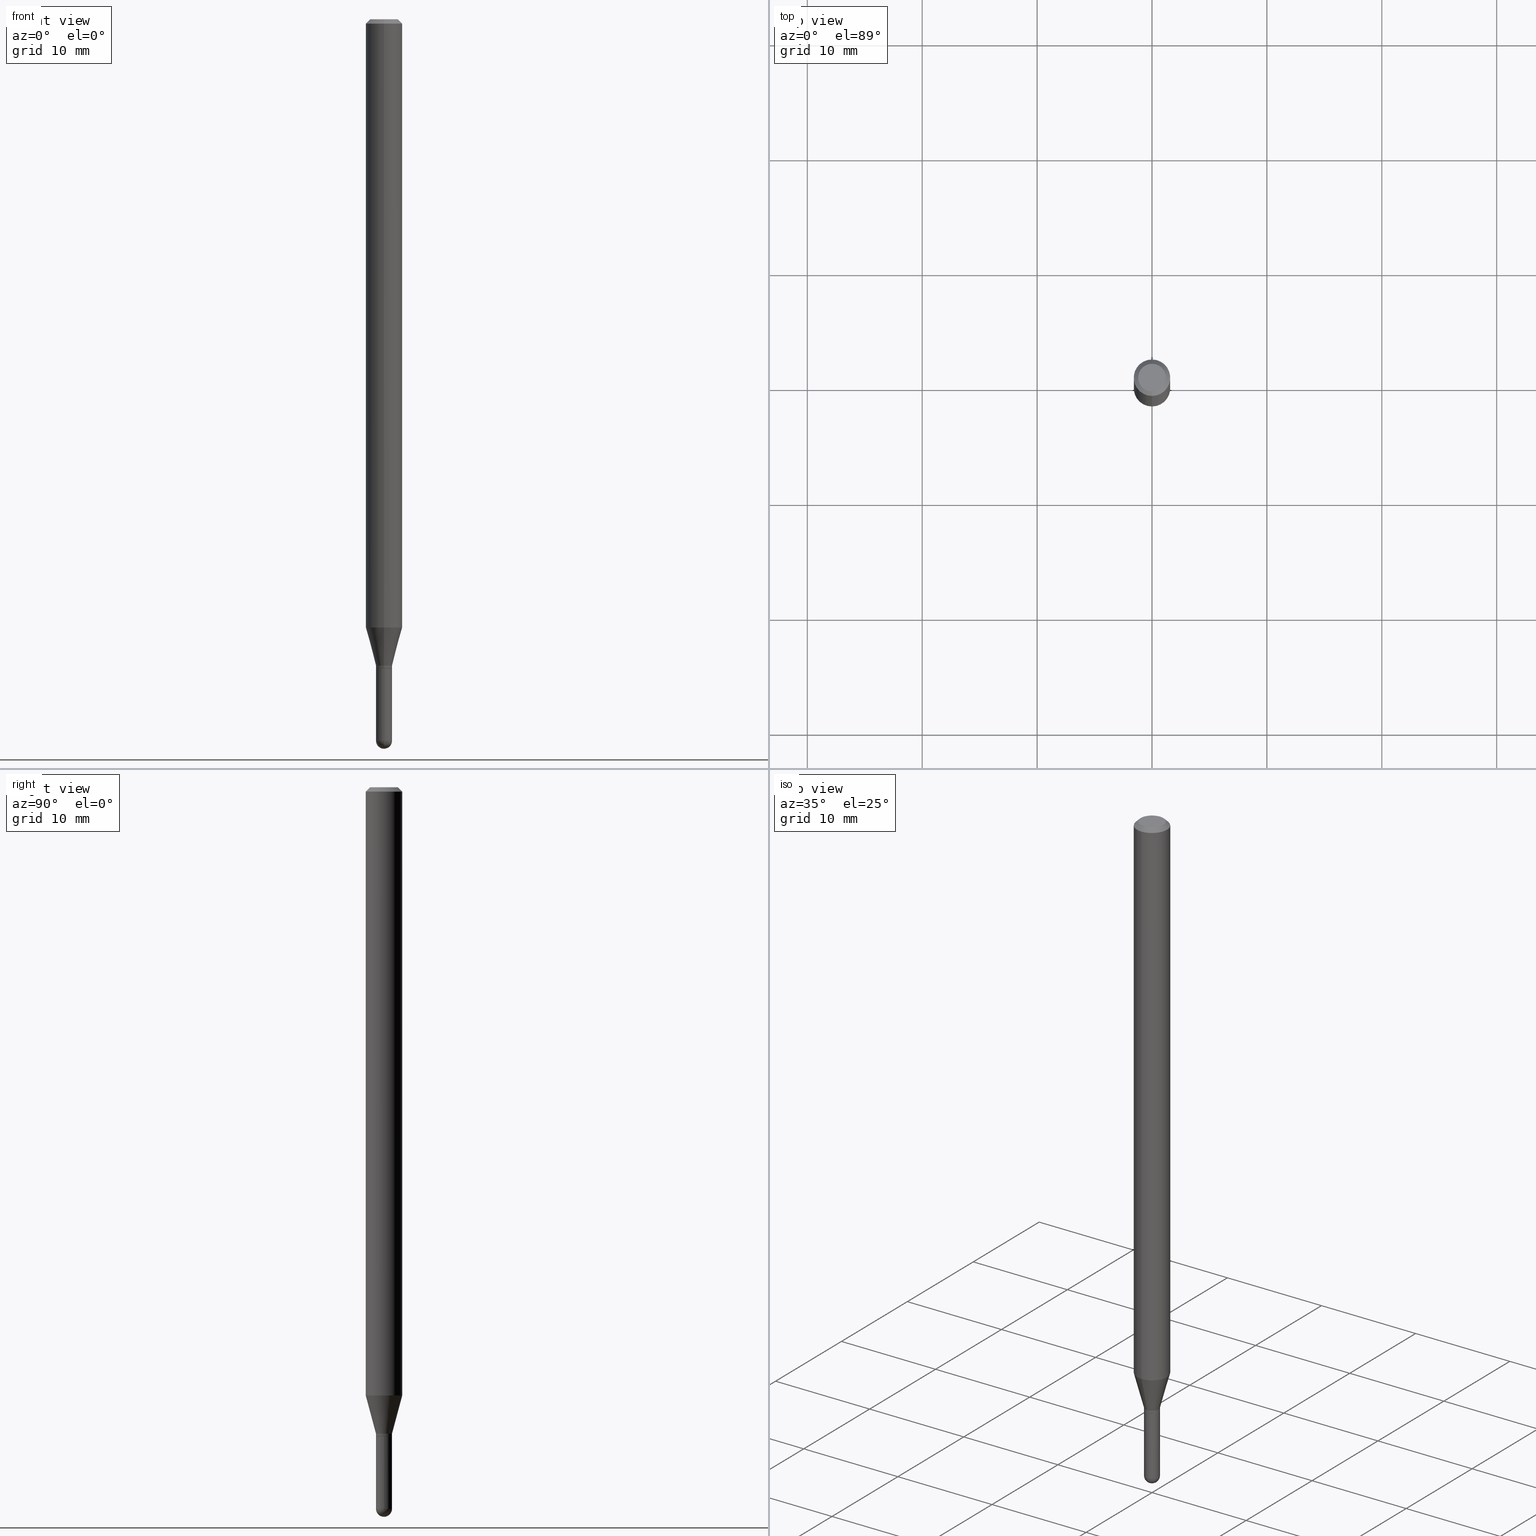
[diagram: canonical four-view strip — front | top / right | iso, engineering-drawing reading convention]
A machine part, canonical four-view strip (front | top / right | iso — engineering-drawing reading convention). The complete STEP part file that produces these views, byte-faithful:
ISO-10303-21;
HEADER;
FILE_DESCRIPTION (( 'STEP AP203' ),
    '1' );
FILE_NAME ('00963.STEP',
    '2024-03-07T19:16:21',
    ( '' ),
    ( '' ),
    'SwSTEP 2.0',
    'SolidWorks 2023',
    '' );
FILE_SCHEMA (( 'CONFIG_CONTROL_DESIGN' ));
ENDSEC;

DATA;
#1 = CARTESIAN_POINT ( 'NONE',  ( 5.416780979827812777E-29, -7.733534395540570938E-15, -2.215000000000000302 ) ) ;
#2 = FACE_OUTER_BOUND ( 'NONE', #28, .T. ) ;
#3 = CARTESIAN_POINT ( 'NONE',  ( 3.668248970538024537E-31, -5.237156475535378109E-17, -0.01500000000000000812 ) ) ;
#4 = LINE ( 'NONE', #434, #249 ) ;
#5 = DATE_AND_TIME ( #131, #308 ) ;
#6 = ORIENTED_EDGE ( 'NONE', *, *, #512, .T. ) ;
#7 = DIRECTION ( 'NONE',  ( -2.445499313692014711E-29, 3.491437650356916389E-15, 1.000000000000000000 ) ) ;
#8 = EDGE_CURVE ( 'NONE', #373, #41, #344, .T. ) ;
#9 = CIRCLE ( 'NONE', #56, 0.06250000000000000000 ) ;
#10 = DIRECTION ( 'NONE',  ( -2.445499313692014711E-29, 3.491437650356916389E-15, 1.000000000000000000 ) ) ;
#11 = APPROVAL_DATE_TIME ( #125, #42 ) ;
#12 = CONICAL_SURFACE ( 'NONE', #111, 0.06250000000000000000, 0.7853981633974483900 ) ;
#13 = CARTESIAN_POINT ( 'NONE',  ( 4.440892098501138921E-16, 0.06249999999999995143, -0.01500000000000022669 ) ) ;
#14 = DIRECTION ( 'NONE',  ( -6.982962677686265133E-15, -1.000000000000000000, 0.000000000000000000 ) ) ;
#15 = APPROVAL_DATE_TIME ( #164, #486 ) ;
#16 = ORIENTED_EDGE ( 'NONE', *, *, #141, .T. ) ;
#17 = ADVANCED_FACE ( 'NONE', ( #352 ), #428, .T. ) ;
#18 = DIRECTION ( 'NONE',  ( -6.982962677686265922E-15, -1.000000000000000000, 0.000000000000000000 ) ) ;
#19 = VERTEX_POINT ( 'NONE', #500 ) ;
#20 = PERSON_AND_ORGANIZATION ( #109, #425 ) ;
#21 = DIRECTION ( 'NONE',  ( -6.982962677686266711E-15, -1.000000000000000000, 3.491437650356916389E-15 ) ) ;
#22 = AXIS2_PLACEMENT_3D ( 'NONE', #159, #404, #21 ) ;
#23 = CONICAL_SURFACE ( 'NONE', #197, 0.02699999999999999969, 0.7853981633974739252 ) ;
#24 = VERTEX_POINT ( 'NONE', #426 ) ;
#25 = PLANE ( 'NONE',  #372 ) ;
#26 = ORIENTED_EDGE ( 'NONE', *, *, #70, .F. ) ;
#27 = ORIENTED_EDGE ( 'NONE', *, *, #470, .T. ) ;
#28 = EDGE_LOOP ( 'NONE', ( #108, #140, #215, #303 ) ) ;
#29 = ORIENTED_EDGE ( 'NONE', *, *, #185, .F. ) ;
#30 = AXIS2_PLACEMENT_3D ( 'NONE', #358, #7, #239 ) ;
#31 = ORIENTED_EDGE ( 'NONE', *, *, #451, .T. ) ;
#32 = ORIENTED_EDGE ( 'NONE', *, *, #35, .T. ) ;
#33 = ORIENTED_EDGE ( 'NONE', *, *, #293, .T. ) ;
#34 = EDGE_CURVE ( 'NONE', #144, #251, #220, .T. ) ;
#35 = EDGE_CURVE ( 'NONE', #376, #73, #227, .T. ) ;
#36 = VERTEX_POINT ( 'NONE', #261 ) ;
#37 = CARTESIAN_POINT ( 'NONE',  ( -0.02750000000000000014, 1.953992523340275521E-16, -1.352707149820099181E-30 ) ) ;
#38 = ORIENTED_EDGE ( 'NONE', *, *, #70, .T. ) ;
#39 = CIRCLE ( 'NONE', #46, 0.02699999999999999969 ) ;
#40 = APPROVAL_PERSON_ORGANIZATION ( #327, #486, #367 ) ;
#41 = VERTEX_POINT ( 'NONE', #145 ) ;
#42 = APPROVAL ( #370, 'UNSPECIFIED' ) ;
#43 = CARTESIAN_POINT ( 'NONE',  ( 1.953992523340289573E-16, 0.02750000000000020137, -9.601453538481590525E-17 ) ) ;
#44 = DIRECTION ( 'NONE',  ( 1.000000000000000000, -6.982962677686279332E-15, 0.000000000000000000 ) ) ;
#45 = DIRECTION ( 'NONE',  ( -6.982962677686265133E-15, -1.000000000000000000, 0.000000000000000000 ) ) ;
#46 = AXIS2_PLACEMENT_3D ( 'NONE', #129, #320, #429 ) ;
#47 = AXIS2_PLACEMENT_3D ( 'NONE', #94, #430, #14 ) ;
#48 = ORIENTED_EDGE ( 'NONE', *, *, #405, .T. ) ;
#49 = CARTESIAN_POINT ( 'NONE',  ( -1.920314736363195647E-16, -0.02750000000000793476, -2.215000000000000302 ) ) ;
#50 = ADVANCED_FACE ( 'NONE', ( #148 ), #147, .T. ) ;
#51 = DIRECTION ( 'NONE',  ( 6.982962677686265922E-15, 1.000000000000000000, -3.483106191921935554E-15 ) ) ;
#52 = DIRECTION ( 'NONE',  ( 6.982962677686265922E-15, 1.000000000000000000, -3.483106191921935554E-15 ) ) ;
#53 = CARTESIAN_POINT ( 'NONE',  ( 5.416780979827812777E-29, -7.733534395540570938E-15, -2.215000000000000302 ) ) ;
#54 = ADVANCED_FACE ( 'NONE', ( #114 ), #423, .T. ) ;
#55 = FACE_OUTER_BOUND ( 'NONE', #375, .T. ) ;
#56 = AXIS2_PLACEMENT_3D ( 'NONE', #418, #183, #82 ) ;
#57 = FACE_OUTER_BOUND ( 'NONE', #182, .T. ) ;
#58 = PERSON_AND_ORGANIZATION_ROLE ( 'classification_officer' ) ;
#59 = APPROVAL_PERSON_ORGANIZATION ( #100, #42, #167 ) ;
#60 = EDGE_CURVE ( 'NONE', #252, #41, #9, .T. ) ;
#61 = FACE_OUTER_BOUND ( 'NONE', #449, .T. ) ;
#62 = PERSON_AND_ORGANIZATION ( #109, #425 ) ;
#63 = DIRECTION ( 'NONE',  ( 5.024295867788190974E-15, 0.7071067811865681119, 0.7071067811865270336 ) ) ;
#64 = CARTESIAN_POINT ( 'NONE',  ( 5.416780979827812777E-29, -7.733534395540570938E-15, -2.215000000000000302 ) ) ;
#65 = EDGE_CURVE ( 'NONE', #19, #252, #225, .T. ) ;
#66 = ORIENTED_EDGE ( 'NONE', *, *, #466, .F. ) ;
#67 = ORIENTED_EDGE ( 'NONE', *, *, #413, .F. ) ;
#68 = FACE_OUTER_BOUND ( 'NONE', #81, .T. ) ;
#69 = ORIENTED_EDGE ( 'NONE', *, *, #451, .F. ) ;
#70 = EDGE_CURVE ( 'NONE', #462, #276, #290, .T. ) ;
#71 = AXIS2_PLACEMENT_3D ( 'NONE', #503, #266, #45 ) ;
#72 =( GEOMETRIC_REPRESENTATION_CONTEXT ( 3 ) GLOBAL_UNCERTAINTY_ASSIGNED_CONTEXT ( ( #226 ) ) GLOBAL_UNIT_ASSIGNED_CONTEXT ( ( #331, #188, #135 ) ) REPRESENTATION_CONTEXT ( 'NONE', 'WORKASPACE' ) );
#73 = VERTEX_POINT ( 'NONE', #75 ) ;
#74 = ADVANCED_FACE ( 'NONE', ( #385 ), #296, .T. ) ;
#75 = CARTESIAN_POINT ( 'NONE',  ( 3.197442310920983692E-16, 0.02749999999999246797, -2.215000000000000302 ) ) ;
#76 = DESIGN_CONTEXT ( 'detailed design', #417, 'design' ) ;
#77 = EDGE_LOOP ( 'NONE', ( #452, #377, #379, #305 ) ) ;
#78 = DIRECTION ( 'NONE',  ( -2.445468806185136597E-29, 3.491481338843145583E-15, 1.000000000000000000 ) ) ;
#79 = ORIENTED_EDGE ( 'NONE', *, *, #186, .T. ) ;
#80 = AXIS2_PLACEMENT_3D ( 'NONE', #196, #435, #95 ) ;
#81 = EDGE_LOOP ( 'NONE', ( #285, #391 ) ) ;
#82 = DIRECTION ( 'NONE',  ( -6.982962677686265922E-15, -1.000000000000000000, 3.483106191921935554E-15 ) ) ;
#83 = DIRECTION ( 'NONE',  ( -6.982962677686265922E-15, -1.000000000000000000, 3.491437650356916389E-15 ) ) ;
#84 = CARTESIAN_POINT ( 'NONE',  ( 5.440013223307887691E-29, -7.766703053218961132E-15, -2.224500000000000366 ) ) ;
#85 = AXIS2_PLACEMENT_3D ( 'NONE', #247, #250, #374 ) ;
#86 = CIRCLE ( 'NONE', #355, 0.06250000000000000000 ) ;
#87 = DIRECTION ( 'NONE',  ( 1.000000000000000000, -6.982962677686279332E-15, 0.000000000000000000 ) ) ;
#88 = COORDINATED_UNIVERSAL_TIME_OFFSET ( 5, 0, .BEHIND. ) ;
#89 = DIRECTION ( 'NONE',  ( 6.982962677686265922E-15, 1.000000000000000000, -3.491437650356915995E-15 ) ) ;
#90 = CARTESIAN_POINT ( 'NONE',  ( 1.920314736364267512E-16, 0.02749999999999223205, -2.225000000000000089 ) ) ;
#91 = APPLICATION_PROTOCOL_DEFINITION ( 'international standard', 'config_control_design', 1994, #417 ) ;
#92 = DIRECTION ( 'NONE',  ( -2.445499313692014711E-29, 3.491437650356916389E-15, 1.000000000000000000 ) ) ;
#93 = EDGE_CURVE ( 'NONE', #314, #340, #454, .T. ) ;
#94 = CARTESIAN_POINT ( 'NONE',  ( 5.441235972964734211E-29, -7.768448772044140228E-15, -2.225000000000000533 ) ) ;
#95 = DIRECTION ( 'NONE',  ( 1.000000000000000000, -6.982962677686279332E-15, 0.000000000000000000 ) ) ;
#96 = CARTESIAN_POINT ( 'NONE',  ( 5.441235972964734211E-29, -7.768448772044140228E-15, -2.225000000000000533 ) ) ;
#97 = PERSON_AND_ORGANIZATION ( #109, #425 ) ;
#98 = FACE_OUTER_BOUND ( 'NONE', #383, .T. ) ;
#99 = EDGE_CURVE ( 'NONE', #144, #172, #420, .T. ) ;
#100 = PERSON_AND_ORGANIZATION ( #109, #425 ) ;
#101 = ORIENTED_EDGE ( 'NONE', *, *, #466, .T. ) ;
#102 = DIRECTION ( 'NONE',  ( 1.000000000000000000, 0.000000000000000000, 0.000000000000000000 ) ) ;
#103 = SPHERICAL_SURFACE ( 'NONE', #85, 0.02750000000000009381 ) ;
#104 = AXIS2_PLACEMENT_3D ( 'NONE', #390, #78, #44 ) ;
#105 = LOCAL_TIME ( 14, 16, 20.00000000000000000, #203 ) ;
#106 = ADVANCED_FACE ( 'NONE', ( #179 ), #345, .T. ) ;
#107 = EDGE_CURVE ( 'NONE', #314, #455, #487, .T. ) ;
#108 = ORIENTED_EDGE ( 'NONE', *, *, #313, .F. ) ;
#109 = PERSON ( 'UNSPECIFIED', 'UNSPECIFIED', 'UNSPECIFIED', ('UNSPECIFIED'), ('UNSPECIFIED'), ('UNSPECIFIED') ) ;
#110 = VECTOR ( 'NONE', #121, 39.37007874015748854 ) ;
#111 = AXIS2_PLACEMENT_3D ( 'NONE', #127, #277, #51 ) ;
#112 = DIRECTION ( 'NONE',  ( 1.000000000000000000, -6.982962677686279332E-15, 0.000000000000000000 ) ) ;
#113 = CARTESIAN_POINT ( 'NONE',  ( 4.440892098500625669E-16, 0.06250000000000000000, -2.182148531473072497E-16 ) ) ;
#114 = FACE_OUTER_BOUND ( 'NONE', #498, .T. ) ;
#115 = CONICAL_SURFACE ( 'NONE', #149, 0.06250000000000000000, 0.7853981633974483900 ) ;
#116 = ORIENTED_EDGE ( 'NONE', *, *, #506, .T. ) ;
#117 = DIRECTION ( 'NONE',  ( -6.982962677686265922E-15, -1.000000000000000000, 0.000000000000000000 ) ) ;
#118 = DIRECTION ( 'NONE',  ( 2.445499313692014711E-29, -3.491437650356916389E-15, -1.000000000000000000 ) ) ;
#119 = CARTESIAN_POINT ( 'NONE',  ( 5.097345510727747857E-29, -7.277476600949894136E-15, -2.084378221735090797 ) ) ;
#120 = CIRCLE ( 'NONE', #158, 0.02750000000000019790 ) ;
#121 = DIRECTION ( 'NONE',  ( -1.807323732225331717E-15, -0.2588190451025184080, 0.9659258262890689783 ) ) ;
#122 = CARTESIAN_POINT ( 'NONE',  ( 5.441168093761929600E-29, -7.768545978925998537E-15, -2.225000000000000089 ) ) ;
#123 = FACE_OUTER_BOUND ( 'NONE', #216, .T. ) ;
#124 = DIRECTION ( 'NONE',  ( -2.445499313692014431E-29, 3.491437650356915995E-15, 1.000000000000000000 ) ) ;
#125 = DATE_AND_TIME ( #329, #160 ) ;
#126 = DIRECTION ( 'NONE',  ( -2.445499313692014711E-29, 3.491437650356916389E-15, 1.000000000000000000 ) ) ;
#127 = CARTESIAN_POINT ( 'NONE',  ( 3.668248970538024537E-31, -5.237156475535378109E-17, -0.01500000000000000812 ) ) ;
#128 = DATE_TIME_ROLE ( 'creation_date' ) ;
#129 = CARTESIAN_POINT ( 'NONE',  ( 5.441235972964734211E-29, -7.768448772044140228E-15, -2.225000000000000533 ) ) ;
#130 = DIRECTION ( 'NONE',  ( -2.445499313692014711E-29, 3.491437650356916389E-15, 1.000000000000000000 ) ) ;
#131 = CALENDAR_DATE ( 2024, 7, 3 ) ;
#132 = VECTOR ( 'NONE', #268, 39.37007874015748143 ) ;
#133 = PERSON_AND_ORGANIZATION_ROLE ( 'design_owner' ) ;
#134 = CARTESIAN_POINT ( 'NONE',  ( 0.000000000000000000, 0.000000000000000000, 0.000000000000000000 ) ) ;
#135 =( NAMED_UNIT ( * ) SI_UNIT ( $, .STERADIAN. ) SOLID_ANGLE_UNIT ( ) );
#136 = CARTESIAN_POINT ( 'NONE',  ( -1.920314736363199591E-16, -0.02750000000000805966, -2.224500000000000366 ) ) ;
#137 = VECTOR ( 'NONE', #124, 39.37007874015748143 ) ;
#138 = ORIENTED_EDGE ( 'NONE', *, *, #446, .T. ) ;
#139 = VERTEX_POINT ( 'NONE', #191 ) ;
#140 = ORIENTED_EDGE ( 'NONE', *, *, #8, .T. ) ;
#141 = EDGE_CURVE ( 'NONE', #376, #340, #120, .T. ) ;
#142 = DIRECTION ( 'NONE',  ( -2.445499313692014711E-29, 3.491437650356916389E-15, 1.000000000000000000 ) ) ;
#143 = EDGE_CURVE ( 'NONE', #455, #376, #326, .T. ) ;
#144 = VERTEX_POINT ( 'NONE', #271 ) ;
#145 = CARTESIAN_POINT ( 'NONE',  ( -4.364351673553912750E-16, -0.06250000000000005551, -0.01499999999999979128 ) ) ;
#146 = EDGE_LOOP ( 'NONE', ( #422, #493, #26, #178 ) ) ;
#147 = SPHERICAL_SURFACE ( 'NONE', #381, 0.02750000000000009381 ) ;
#148 = FACE_OUTER_BOUND ( 'NONE', #77, .T. ) ;
#149 = AXIS2_PLACEMENT_3D ( 'NONE', #3, #118, #52 ) ;
#150 = CC_DESIGN_SECURITY_CLASSIFICATION ( #336, ( #347 ) ) ;
#151 = DIRECTION ( 'NONE',  ( -2.445468806185136597E-29, 3.491481338843145583E-15, 1.000000000000000000 ) ) ;
#152 = CARTESIAN_POINT ( 'NONE',  ( -1.953992523339674261E-16, -0.02750000000000868070, -2.472499999999999254 ) ) ;
#153 = CARTESIAN_POINT ( 'NONE',  ( 1.953992523340826738E-16, 0.02749999999999233613, -2.224500000000000366 ) ) ;
#154 = ORIENTED_EDGE ( 'NONE', *, *, #60, .F. ) ;
#155 = CARTESIAN_POINT ( 'NONE',  ( 3.316907271900976096E-16, 0.04749999999999999362, -1.702744857894170373E-16 ) ) ;
#156 = CARTESIAN_POINT ( 'NONE',  ( 1.936228954946823724E-16, 0.02699999999999223160, -2.225000000000000533 ) ) ;
#157 = DATE_TIME_ROLE ( 'classification_date' ) ;
#158 = AXIS2_PLACEMENT_3D ( 'NONE', #356, #142, #476 ) ;
#159 = CARTESIAN_POINT ( 'NONE',  ( 2.167298038866162104E-46, -3.094249885933522826E-32, -8.862394794926981890E-18 ) ) ;
#160 = LOCAL_TIME ( 14, 16, 20.00000000000000000, #478 ) ;
#161 = DIRECTION ( 'NONE',  ( -2.445468806185136597E-29, 3.491481338843145583E-15, 1.000000000000000000 ) ) ;
#162 = DIRECTION ( 'NONE',  ( -2.445499313692014711E-29, 3.491437650356916389E-15, 1.000000000000000000 ) ) ;
#163 = DIRECTION ( 'NONE',  ( -2.445468806185136597E-29, 3.491481338843145583E-15, 1.000000000000000000 ) ) ;
#164 = DATE_AND_TIME ( #286, #229 ) ;
#165 = CARTESIAN_POINT ( 'NONE',  ( 0.000000000000000000, 0.000000000000000000, 0.000000000000000000 ) ) ;
#166 =( LENGTH_UNIT ( ) NAMED_UNIT ( * ) SI_UNIT ( $, .METRE. ) );
#167 = APPROVAL_ROLE ( '' ) ;
#168 = CARTESIAN_POINT ( 'NONE',  ( 6.044069915997506284E-29, -8.636055388987333140E-15, -2.472500000000000142 ) ) ;
#169 = CLOSED_SHELL ( 'NONE', ( #54, #50, #380, #337, #74 ) ) ;
#170 = CIRCLE ( 'NONE', #403, 0.02750000000000020137 ) ;
#171 = CC_DESIGN_PERSON_AND_ORGANIZATION_ASSIGNMENT ( #396, #58, ( #336 ) ) ;
#172 = VERTEX_POINT ( 'NONE', #468 ) ;
#173 = ADVANCED_FACE ( 'NONE', ( #61 ), #115, .T. ) ;
#174 = ORIENTED_EDGE ( 'NONE', *, *, #495, .T. ) ;
#175 = CONICAL_SURFACE ( 'NONE', #453, 0.02750000000000020137, 0.2617993877991505181 ) ;
#176 = ORIENTED_EDGE ( 'NONE', *, *, #143, .F. ) ;
#177 = ORIENTED_EDGE ( 'NONE', *, *, #34, .T. ) ;
#178 = ORIENTED_EDGE ( 'NONE', *, *, #405, .F. ) ;
#179 = FACE_OUTER_BOUND ( 'NONE', #208, .T. ) ;
#180 = AXIS2_PLACEMENT_3D ( 'NONE', #165, #92, #243 ) ;
#181 = APPLICATION_CONTEXT ( 'configuration controlled 3d designs of mechanical parts and assemblies' ) ;
#182 = EDGE_LOOP ( 'NONE', ( #79, #101 ) ) ;
#183 = DIRECTION ( 'NONE',  ( -2.445499313692014711E-29, 3.491437650356916389E-15, 1.000000000000000000 ) ) ;
#184 = DIRECTION ( 'NONE',  ( -1.000000000000000000, 6.982962677686265922E-15, -4.883557194083112901E-29 ) ) ;
#185 = EDGE_CURVE ( 'NONE', #340, #376, #441, .T. ) ;
#186 = EDGE_CURVE ( 'NONE', #139, #172, #189, .T. ) ;
#187 = CARTESIAN_POINT ( 'NONE',  ( 0.000000000000000000, 0.000000000000000000, 0.000000000000000000 ) ) ;
#188 =( NAMED_UNIT ( * ) PLANE_ANGLE_UNIT ( ) SI_UNIT ( $, .RADIAN. ) );
#189 = CIRCLE ( 'NONE', #80, 0.02750000000000000014 ) ;
#190 = AXIS2_PLACEMENT_3D ( 'NONE', #134, #287, #102 ) ;
#191 = CARTESIAN_POINT ( 'NONE',  ( 0.02750000000000000014, -7.960577452562371818E-15, -2.225000000000000089 ) ) ;
#192 = CARTESIAN_POINT ( 'NONE',  ( -1.920314736363195647E-16, -0.02750000000000793476, -2.215000000000000302 ) ) ;
#193 = ORIENTED_EDGE ( 'NONE', *, *, #107, .T. ) ;
#194 = DIRECTION ( 'NONE',  ( 1.000000000000000000, -6.982962677686265922E-15, 4.883557194083112340E-29 ) ) ;
#195 = APPROVAL_STATUS ( 'not_yet_approved' ) ;
#196 = CARTESIAN_POINT ( 'NONE',  ( 5.441168093761929600E-29, -7.768545978925998537E-15, -2.225000000000000089 ) ) ;
#197 = AXIS2_PLACEMENT_3D ( 'NONE', #96, #10, #321 ) ;
#198 = EDGE_CURVE ( 'NONE', #496, #276, #402, .T. ) ;
#199 = CARTESIAN_POINT ( 'NONE',  ( 6.046421623292748621E-29, -8.632687610289675147E-15, -2.472499999999999254 ) ) ;
#200 = DIRECTION ( 'NONE',  ( 1.839019923739601893E-15, 0.2588190451025252359, 0.9659258262890670910 ) ) ;
#201 = ORIENTED_EDGE ( 'NONE', *, *, #99, .T. ) ;
#202 = DIRECTION ( 'NONE',  ( 1.000000000000000000, -6.982962677686279332E-15, 0.000000000000000000 ) ) ;
#203 = COORDINATED_UNIVERSAL_TIME_OFFSET ( 5, 0, .BEHIND. ) ;
#204 = DIRECTION ( 'NONE',  ( -2.445499313692014711E-29, 3.491437650356916389E-15, 1.000000000000000000 ) ) ;
#205 = EDGE_CURVE ( 'NONE', #455, #314, #39, .T. ) ;
#206 = EDGE_CURVE ( 'NONE', #73, #19, #361, .T. ) ;
#207 = FACE_OUTER_BOUND ( 'NONE', #146, .T. ) ;
#208 = EDGE_LOOP ( 'NONE', ( #332, #221, #218, #330 ) ) ;
#209 = AXIS2_PLACEMENT_3D ( 'NONE', #84, #162, #18 ) ;
#210 = APPROVAL_PERSON_ORGANIZATION ( #97, #464, #439 ) ;
#211 = DIRECTION ( 'NONE',  ( -7.105427357601001070E-15, -1.000000000000000000, 0.000000000000000000 ) ) ;
#212 = AXIS2_PLACEMENT_3D ( 'NONE', #258, #304, #83 ) ;
#213 = ORIENTED_EDGE ( 'NONE', *, *, #93, .T. ) ;
#214 = ORIENTED_EDGE ( 'NONE', *, *, #60, .T. ) ;
#215 = ORIENTED_EDGE ( 'NONE', *, *, #413, .T. ) ;
#216 = EDGE_LOOP ( 'NONE', ( #33, #414 ) ) ;
#217 = ADVANCED_FACE ( 'NONE', ( #365 ), #399, .T. ) ;
#218 = ORIENTED_EDGE ( 'NONE', *, *, #495, .F. ) ;
#219 = DIRECTION ( 'NONE',  ( -2.445468806185136877E-29, 3.491481338843145188E-15, 1.000000000000000000 ) ) ;
#220 = CIRCLE ( 'NONE', #280, 0.02750000000000000014 ) ;
#221 = ORIENTED_EDGE ( 'NONE', *, *, #206, .T. ) ;
#222 = DIRECTION ( 'NONE',  ( 6.982962677686265922E-15, 1.000000000000000000, 0.000000000000000000 ) ) ;
#223 = CC_DESIGN_PERSON_AND_ORGANIZATION_ASSIGNMENT ( #62, #325, ( #322 ) ) ;
#224 = CC_DESIGN_DATE_AND_TIME_ASSIGNMENT ( #401, #128, ( #322 ) ) ;
#225 = LINE ( 'NONE', #113, #262 ) ;
#226 = UNCERTAINTY_MEASURE_WITH_UNIT (LENGTH_MEASURE( 1.000000000000000082E-05 ), #331, 'distance_accuracy_value', 'NONE');
#227 = LINE ( 'NONE', #43, #511 ) ;
#228 = CIRCLE ( 'NONE', #499, 0.04749999999999999362 ) ;
#229 = LOCAL_TIME ( 14, 16, 20.00000000000000000, #88 ) ;
#230 = CYLINDRICAL_SURFACE ( 'NONE', #180, 0.02750000000000020137 ) ;
#231 = CARTESIAN_POINT ( 'NONE',  ( 5.097345510727747857E-29, -7.277476600949894136E-15, -2.084378221735090797 ) ) ;
#232 = PERSON_AND_ORGANIZATION_ROLE ( 'design_supplier' ) ;
#233 = CARTESIAN_POINT ( 'NONE',  ( 4.364351673553919652E-16, 0.06249999999999995143, -0.01500000000000022669 ) ) ;
#234 = CARTESIAN_POINT ( 'NONE',  ( 3.668248970538024537E-31, -5.237156475535378109E-17, -0.01500000000000000812 ) ) ;
#235 = EDGE_CURVE ( 'NONE', #248, #24, #368, .T. ) ;
#236 = DIRECTION ( 'NONE',  ( -6.982962677686265922E-15, -1.000000000000000000, 3.491437650356915995E-15 ) ) ;
#237 = DIRECTION ( 'NONE',  ( -2.445499313692014711E-29, 3.491437650356916389E-15, 1.000000000000000000 ) ) ;
#238 = CIRCLE ( 'NONE', #22, 0.04749999999999999362 ) ;
#239 = DIRECTION ( 'NONE',  ( -6.982962677686265922E-15, -1.000000000000000000, 3.491437650356915995E-15 ) ) ;
#240 = CIRCLE ( 'NONE', #393, 0.06250000000000000000 ) ;
#241 = COORDINATED_UNIVERSAL_TIME_OFFSET ( 5, 0, .BEHIND. ) ;
#242 = ADVANCED_FACE ( 'NONE', ( #98 ), #230, .T. ) ;
#243 = DIRECTION ( 'NONE',  ( -6.982962677686265922E-15, -1.000000000000000000, 3.491437650356916389E-15 ) ) ;
#244 = LENGTH_MEASURE_WITH_UNIT ( LENGTH_MEASURE( 0.02539999999999999897 ), #166 );
#245 = DIRECTION ( 'NONE',  ( -1.000000000000000000, 7.105427357601001070E-15, -4.926315508542082329E-29 ) ) ;
#246 = ORIENTED_EDGE ( 'NONE', *, *, #99, .F. ) ;
#247 = CARTESIAN_POINT ( 'NONE',  ( 6.044069915997506284E-29, -8.636055388987333140E-15, -2.472500000000000142 ) ) ;
#248 = VERTEX_POINT ( 'NONE', #192 ) ;
#249 = VECTOR ( 'NONE', #400, 39.37007874015748143 ) ;
#250 = DIRECTION ( 'NONE',  ( -1.000000000000000000, 6.982962677686265922E-15, -4.883557194083112901E-29 ) ) ;
#251 = VERTEX_POINT ( 'NONE', #152 ) ;
#252 = VERTEX_POINT ( 'NONE', #13 ) ;
#253 = ORIENTED_EDGE ( 'NONE', *, *, #186, .F. ) ;
#254 = AXIS2_PLACEMENT_3D ( 'NONE', #267, #194, #483 ) ;
#255 = AXIS2_PLACEMENT_3D ( 'NONE', #122, #161, #272 ) ;
#256 = PERSON_AND_ORGANIZATION ( #109, #425 ) ;
#257 = CC_DESIGN_PERSON_AND_ORGANIZATION_ASSIGNMENT ( #284, #445, ( #347 ) ) ;
#258 = CARTESIAN_POINT ( 'NONE',  ( 0.000000000000000000, 0.000000000000000000, 0.000000000000000000 ) ) ;
#259 = ORIENTED_EDGE ( 'NONE', *, *, #458, .T. ) ;
#260 = DIRECTION ( 'NONE',  ( 1.000000000000000000, -6.982962677686266711E-15, 4.876176775795935793E-29 ) ) ;
#261 = CARTESIAN_POINT ( 'NONE',  ( 3.840629472727447874E-16, 0.04749999999999999362, -1.747056831868805136E-16 ) ) ;
#262 = VECTOR ( 'NONE', #510, 39.37007874015748143 ) ;
#263 = CC_DESIGN_APPROVAL ( #464, ( #347 ) ) ;
#264 = DIRECTION ( 'NONE',  ( -4.851104656540964275E-15, -0.7071067811865500152, -0.7071067811865450192 ) ) ;
#265 = ADVANCED_FACE ( 'NONE', ( #123 ), #323, .F. ) ;
#266 = DIRECTION ( 'NONE',  ( -2.445499313692014711E-29, 3.491437650356916389E-15, 1.000000000000000000 ) ) ;
#267 = CARTESIAN_POINT ( 'NONE',  ( 6.044069915997506284E-29, -8.636055388987333140E-15, -2.472500000000000142 ) ) ;
#268 = DIRECTION ( 'NONE',  ( -2.445468806185136877E-29, 3.491481338843145188E-15, 1.000000000000000000 ) ) ;
#269 = AXIS2_PLACEMENT_3D ( 'NONE', #90, #357, #481 ) ;
#270 = CIRCLE ( 'NONE', #388, 0.02750000000000000014 ) ;
#271 = CARTESIAN_POINT ( 'NONE',  ( -0.02750000000000000014, -8.005217542273809511E-15, -2.472499999999999254 ) ) ;
#272 = DIRECTION ( 'NONE',  ( 1.000000000000000000, -6.982962677686279332E-15, 0.000000000000000000 ) ) ;
#273 = DIRECTION ( 'NONE',  ( -2.445499313692014711E-29, 3.491437650356916389E-15, 1.000000000000000000 ) ) ;
#274 = CARTESIAN_POINT ( 'NONE',  ( -4.364351673553916201E-16, -0.06250000000000000000, 2.182148531473072497E-16 ) ) ;
#275 = CARTESIAN_POINT ( 'NONE',  ( 1.953992523340831175E-16, 0.02749999999999246797, -2.215000000000000302 ) ) ;
#276 = VERTEX_POINT ( 'NONE', #472 ) ;
#277 = DIRECTION ( 'NONE',  ( 2.445499313692014711E-29, -3.491437650356916389E-15, -1.000000000000000000 ) ) ;
#278 = COORDINATED_UNIVERSAL_TIME_OFFSET ( 5, 0, .BEHIND. ) ;
#279 = ADVANCED_FACE ( 'NONE', ( #55 ), #175, .T. ) ;
#280 = AXIS2_PLACEMENT_3D ( 'NONE', #386, #461, #112 ) ;
#281 = CARTESIAN_POINT ( 'NONE',  ( 1.918465386552814301E-16, 0.02699999999999223160, -2.225000000000000533 ) ) ;
#282 = AXIS2_PLACEMENT_3D ( 'NONE', #64, #237, #366 ) ;
#283 = CARTESIAN_POINT ( 'NONE',  ( 6.046421623292748621E-29, -8.632687610289675147E-15, -2.472499999999999254 ) ) ;
#284 = PERSON_AND_ORGANIZATION ( #109, #425 ) ;
#285 = ORIENTED_EDGE ( 'NONE', *, *, #107, .F. ) ;
#286 = CALENDAR_DATE ( 2024, 7, 3 ) ;
#287 = DIRECTION ( 'NONE',  ( 0.000000000000000000, 0.000000000000000000, 1.000000000000000000 ) ) ;
#288 = CARTESIAN_POINT ( 'NONE',  ( 5.441235972964734211E-29, -7.768448772044140228E-15, -2.225000000000000533 ) ) ;
#289 = FACE_OUTER_BOUND ( 'NONE', #415, .T. ) ;
#290 = CIRCLE ( 'NONE', #104, 0.02750000000000000014 ) ;
#291 = AXIS2_PLACEMENT_3D ( 'NONE', #199, #409, #202 ) ;
#292 = ORIENTED_EDGE ( 'NONE', *, *, #295, .T. ) ;
#293 = EDGE_CURVE ( 'NONE', #36, #373, #228, .T. ) ;
#294 = PRODUCT_RELATED_PRODUCT_CATEGORY ( 'detail', '', ( #421 ) ) ;
#295 = EDGE_CURVE ( 'NONE', #36, #252, #437, .T. ) ;
#296 = CYLINDRICAL_SURFACE ( 'NONE', #431, 0.02750000000000000014 ) ;
#297 = CIRCLE ( 'NONE', #307, 0.02750000000000009381 ) ;
#298 = CC_DESIGN_APPROVAL ( #486, ( #322 ) ) ;
#299 = CARTESIAN_POINT ( 'NONE',  ( -1.885399922974747579E-16, -0.02700000000000776779, -2.225000000000000533 ) ) ;
#300 = ORIENTED_EDGE ( 'NONE', *, *, #506, .F. ) ;
#301 = CARTESIAN_POINT ( 'NONE',  ( 6.044069915997506284E-29, -8.636055388987333140E-15, -2.472500000000000142 ) ) ;
#302 = MANIFOLD_SOLID_BREP ( 'Body-Move/Copy2[1]', #169 ) ;
#303 = ORIENTED_EDGE ( 'NONE', *, *, #295, .F. ) ;
#304 = DIRECTION ( 'NONE',  ( -2.445499313692014711E-29, 3.491437650356916389E-15, 1.000000000000000000 ) ) ;
#305 = ORIENTED_EDGE ( 'NONE', *, *, #446, .F. ) ;
#306 = DIRECTION ( 'NONE',  ( -2.445468806185136597E-29, 3.491481338843145583E-15, 1.000000000000000000 ) ) ;
#307 = AXIS2_PLACEMENT_3D ( 'NONE', #168, #245, #211 ) ;
#308 = LOCAL_TIME ( 14, 16, 20.00000000000000000, #241 ) ;
#309 = ADVANCED_FACE ( 'NONE', ( #394 ), #397, .T. ) ;
#310 = CARTESIAN_POINT ( 'NONE',  ( -1.885399922974747579E-16, -0.02700000000000776779, -2.225000000000000533 ) ) ;
#311 = CARTESIAN_POINT ( 'NONE',  ( 2.167298038866162104E-46, -3.094249885933522826E-32, -8.862394794926981890E-18 ) ) ;
#312 = LINE ( 'NONE', #406, #132 ) ;
#313 = EDGE_CURVE ( 'NONE', #373, #36, #238, .T. ) ;
#314 = VERTEX_POINT ( 'NONE', #299 ) ;
#315 = DIRECTION ( 'NONE',  ( 2.445499313692014991E-29, -3.491437650356915995E-15, -1.000000000000000000 ) ) ;
#316 = EDGE_CURVE ( 'NONE', #496, #251, #297, .T. ) ;
#317 = DIRECTION ( 'NONE',  ( -2.445499313692014711E-29, 3.491437650356916389E-15, 1.000000000000000000 ) ) ;
#318 = APPROVAL_DATE_TIME ( #5, #464 ) ;
#319 = CLOSED_SHELL ( 'NONE', ( #242, #371, #479, #309, #106, #279, #217, #173, #265, #339, #507, #17 ) ) ;
#320 = DIRECTION ( 'NONE',  ( -2.445499313692014711E-29, 3.491437650356916389E-15, 1.000000000000000000 ) ) ;
#321 = DIRECTION ( 'NONE',  ( -6.982962677686265133E-15, -1.000000000000000000, 0.000000000000000000 ) ) ;
#322 = PRODUCT_DEFINITION ( 'UNKNOWN', '', #347, #76 ) ;
#323 = PLANE ( 'NONE',  #424 ) ;
#324 = DIRECTION ( 'NONE',  ( -2.445499313692014711E-29, 3.491437650356916389E-15, 1.000000000000000000 ) ) ;
#325 = PERSON_AND_ORGANIZATION_ROLE ( 'creator' ) ;
#326 = LINE ( 'NONE', #281, #334 ) ;
#327 = PERSON_AND_ORGANIZATION ( #109, #425 ) ;
#328 = CONICAL_SURFACE ( 'NONE', #47, 0.02699999999999999969, 0.7853981633974739252 ) ;
#329 = CALENDAR_DATE ( 2024, 7, 3 ) ;
#330 = ORIENTED_EDGE ( 'NONE', *, *, #235, .F. ) ;
#331 =( CONVERSION_BASED_UNIT ( 'INCH', #244 ) LENGTH_UNIT ( ) NAMED_UNIT ( #351 ) );
#332 = ORIENTED_EDGE ( 'NONE', *, *, #456, .T. ) ;
#333 = ORIENTED_EDGE ( 'NONE', *, *, #235, .T. ) ;
#334 = VECTOR ( 'NONE', #63, 39.37007874015748143 ) ;
#335 = ORIENTED_EDGE ( 'NONE', *, *, #93, .F. ) ;
#336 = SECURITY_CLASSIFICATION ( '', '', #407 ) ;
#337 = ADVANCED_FACE ( 'NONE', ( #207 ), #103, .T. ) ;
#338 = CC_DESIGN_PERSON_AND_ORGANIZATION_ASSIGNMENT ( #256, #133, ( #421 ) ) ;
#339 = ADVANCED_FACE ( 'NONE', ( #68 ), #25, .F. ) ;
#340 = VERTEX_POINT ( 'NONE', #136 ) ;
#341 = EDGE_LOOP ( 'NONE', ( #350, #31, #6, #154 ) ) ;
#342 = ORIENTED_EDGE ( 'NONE', *, *, #35, .F. ) ;
#343 = ORIENTED_EDGE ( 'NONE', *, *, #143, .T. ) ;
#344 = LINE ( 'NONE', #508, #354 ) ;
#345 = CONICAL_SURFACE ( 'NONE', #387, 0.02750000000000020137, 0.2617993877991505181 ) ;
#346 = VECTOR ( 'NONE', #392, 39.37007874015748143 ) ;
#347 = PRODUCT_DEFINITION_FORMATION_WITH_SPECIFIED_SOURCE ( 'ANY', '', #421, .NOT_KNOWN. ) ;
#348 = CARTESIAN_POINT ( 'NONE',  ( 5.416780979827812777E-29, -7.733534395540570938E-15, -2.215000000000000302 ) ) ;
#349 = EDGE_LOOP ( 'NONE', ( #342, #16, #259, #300 ) ) ;
#350 = ORIENTED_EDGE ( 'NONE', *, *, #65, .F. ) ;
#351 = DIMENSIONAL_EXPONENTS ( 1.000000000000000000, 0.000000000000000000, 0.000000000000000000, 0.000000000000000000, 0.000000000000000000, 0.000000000000000000, 0.000000000000000000 ) ;
#352 = FACE_OUTER_BOUND ( 'NONE', #349, .T. ) ;
#353 = ORIENTED_EDGE ( 'NONE', *, *, #205, .T. ) ;
#354 = VECTOR ( 'NONE', #264, 39.37007874015748143 ) ;
#355 = AXIS2_PLACEMENT_3D ( 'NONE', #234, #359, #469 ) ;
#356 = CARTESIAN_POINT ( 'NONE',  ( 5.440013223307887691E-29, -7.766703053218961132E-15, -2.224500000000000366 ) ) ;
#357 = DIRECTION ( 'NONE',  ( 2.438088387897960049E-29, -3.491481338843145188E-15, -1.000000000000000000 ) ) ;
#358 = CARTESIAN_POINT ( 'NONE',  ( 0.000000000000000000, 0.000000000000000000, 0.000000000000000000 ) ) ;
#359 = DIRECTION ( 'NONE',  ( -2.445499313692014711E-29, 3.491437650356916389E-15, 1.000000000000000000 ) ) ;
#360 = APPROVAL_STATUS ( 'not_yet_approved' ) ;
#361 = LINE ( 'NONE', #275, #363 ) ;
#362 = DIRECTION ( 'NONE',  ( -6.982962677686265922E-15, -1.000000000000000000, 4.370956789862821150E-15 ) ) ;
#363 = VECTOR ( 'NONE', #200, 39.37007874015748854 ) ;
#364 = AXIS2_PLACEMENT_3D ( 'NONE', #231, #324, #362 ) ;
#365 = FACE_OUTER_BOUND ( 'NONE', #341, .T. ) ;
#366 = DIRECTION ( 'NONE',  ( -6.982962677686265922E-15, -1.000000000000000000, 0.000000000000000000 ) ) ;
#367 = APPROVAL_ROLE ( '' ) ;
#368 = LINE ( 'NONE', #49, #110 ) ;
#369 = CARTESIAN_POINT ( 'NONE',  ( 6.112496161815219763E-29, -8.730387236456691573E-15, -2.500000000000000000 ) ) ;
#370 = APPROVAL_STATUS ( 'not_yet_approved' ) ;
#371 = ADVANCED_FACE ( 'NONE', ( #289 ), #328, .T. ) ;
#372 = AXIS2_PLACEMENT_3D ( 'NONE', #288, #491, #459 ) ;
#373 = VERTEX_POINT ( 'NONE', #395 ) ;
#374 = DIRECTION ( 'NONE',  ( 6.982962677686265922E-15, 1.000000000000000000, 0.000000000000000000 ) ) ;
#375 = EDGE_LOOP ( 'NONE', ( #494, #116, #333, #69 ) ) ;
#376 = VERTEX_POINT ( 'NONE', #153 ) ;
#377 = ORIENTED_EDGE ( 'NONE', *, *, #316, .T. ) ;
#378 = CC_DESIGN_PERSON_AND_ORGANIZATION_ASSIGNMENT ( #20, #232, ( #347 ) ) ;
#379 = ORIENTED_EDGE ( 'NONE', *, *, #34, .F. ) ;
#380 = ADVANCED_FACE ( 'NONE', ( #57 ), #436, .F. ) ;
#381 = AXIS2_PLACEMENT_3D ( 'NONE', #301, #184, #222 ) ;
#382 = ORIENTED_EDGE ( 'NONE', *, *, #293, .F. ) ;
#383 = EDGE_LOOP ( 'NONE', ( #450, #32, #410, #509 ) ) ;
#384 = EDGE_LOOP ( 'NONE', ( #246, #177, #48, #27, #66 ) ) ;
#385 = FACE_OUTER_BOUND ( 'NONE', #384, .T. ) ;
#386 = CARTESIAN_POINT ( 'NONE',  ( 6.046421623292748621E-29, -8.632687610289675147E-15, -2.472499999999999254 ) ) ;
#387 = AXIS2_PLACEMENT_3D ( 'NONE', #348, #467, #117 ) ;
#388 = AXIS2_PLACEMENT_3D ( 'NONE', #283, #163, #87 ) ;
#389 = DIRECTION ( 'NONE',  ( -2.445499313692014431E-29, 3.491437650356915995E-15, 1.000000000000000000 ) ) ;
#390 = CARTESIAN_POINT ( 'NONE',  ( 6.046421623292748621E-29, -8.632687610289675147E-15, -2.472499999999999254 ) ) ;
#391 = ORIENTED_EDGE ( 'NONE', *, *, #205, .F. ) ;
#392 = DIRECTION ( 'NONE',  ( -4.937700262164674260E-15, -0.7071067811865632269, 0.7071067811865319186 ) ) ;
#393 = AXIS2_PLACEMENT_3D ( 'NONE', #119, #317, #473 ) ;
#394 = FACE_OUTER_BOUND ( 'NONE', #419, .T. ) ;
#395 = CARTESIAN_POINT ( 'NONE',  ( -3.773273898774340269E-16, -0.04749999999999999362, 1.569808935970265344E-16 ) ) ;
#396 = PERSON_AND_ORGANIZATION ( #109, #425 ) ;
#397 = CYLINDRICAL_SURFACE ( 'NONE', #30, 0.06250000000000000000 ) ;
#398 = CARTESIAN_POINT ( 'NONE',  ( 0.02750000000000000014, -8.392648268244210912E-15, -2.472499999999999254 ) ) ;
#399 = CYLINDRICAL_SURFACE ( 'NONE', #411, 0.06250000000000000000 ) ;
#400 = DIRECTION ( 'NONE',  ( -2.445499313692014431E-29, 3.491437650356915995E-15, 1.000000000000000000 ) ) ;
#401 = DATE_AND_TIME ( #482, #432 ) ;
#402 = CIRCLE ( 'NONE', #254, 0.02750000000000009381 ) ;
#403 = AXIS2_PLACEMENT_3D ( 'NONE', #53, #130, #444 ) ;
#404 = DIRECTION ( 'NONE',  ( -2.445499313692014711E-29, 3.491437650356916389E-15, 1.000000000000000000 ) ) ;
#405 = EDGE_CURVE ( 'NONE', #251, #462, #475, .T. ) ;
#406 = CARTESIAN_POINT ( 'NONE',  ( 0.02750000000000000014, -1.920314736363723444E-16, 1.340948613343882413E-30 ) ) ;
#407 = SECURITY_CLASSIFICATION_LEVEL ( 'unclassified' ) ;
#408 = DIRECTION ( 'NONE',  ( 4.937700262164548042E-15, 0.7071067811865451302, -0.7071067811865499042 ) ) ;
#409 = DIRECTION ( 'NONE',  ( -2.445468806185136597E-29, 3.491481338843145583E-15, 1.000000000000000000 ) ) ;
#410 = ORIENTED_EDGE ( 'NONE', *, *, #456, .F. ) ;
#411 = AXIS2_PLACEMENT_3D ( 'NONE', #443, #204, #236 ) ;
#412 = CIRCLE ( 'NONE', #255, 0.02750000000000000014 ) ;
#413 = EDGE_CURVE ( 'NONE', #41, #252, #86, .T. ) ;
#414 = ORIENTED_EDGE ( 'NONE', *, *, #313, .T. ) ;
#415 = EDGE_LOOP ( 'NONE', ( #193, #343, #29, #335 ) ) ;
#416 = VECTOR ( 'NONE', #219, 39.37007874015748143 ) ;
#417 = APPLICATION_CONTEXT ( 'configuration controlled 3d designs of mechanical parts and assemblies' ) ;
#418 = CARTESIAN_POINT ( 'NONE',  ( 3.668248970538024537E-31, -5.237156475535378109E-17, -0.01500000000000000812 ) ) ;
#419 = EDGE_LOOP ( 'NONE', ( #174, #460, #67, #497 ) ) ;
#420 = LINE ( 'NONE', #37, #416 ) ;
#421 = PRODUCT ( '00963', '00963', '', ( #490 ) ) ;
#422 = ORIENTED_EDGE ( 'NONE', *, *, #316, .F. ) ;
#423 = CYLINDRICAL_SURFACE ( 'NONE', #492, 0.02750000000000000014 ) ;
#424 = AXIS2_PLACEMENT_3D ( 'NONE', #155, #315, #89 ) ;
#425 = ORGANIZATION ( 'UNSPECIFIED', 'UNSPECIFIED', '' ) ;
#426 = CARTESIAN_POINT ( 'NONE',  ( -4.364351673553408372E-16, -0.06250000000000729972, -2.084378221735090797 ) ) ;
#427 = CC_DESIGN_DATE_AND_TIME_ASSIGNMENT ( #474, #157, ( #336 ) ) ;
#428 = CYLINDRICAL_SURFACE ( 'NONE', #212, 0.02750000000000020137 ) ;
#429 = DIRECTION ( 'NONE',  ( -6.982962677686265133E-15, -1.000000000000000000, 0.000000000000000000 ) ) ;
#430 = DIRECTION ( 'NONE',  ( -2.445499313692014711E-29, 3.491437650356916389E-15, 1.000000000000000000 ) ) ;
#431 = AXIS2_PLACEMENT_3D ( 'NONE', #187, #151, #260 ) ;
#432 = LOCAL_TIME ( 14, 16, 20.00000000000000000, #278 ) ;
#433 = DIRECTION ( 'NONE',  ( -6.982962677686266711E-15, -1.000000000000000000, 3.491437650356916389E-15 ) ) ;
#434 = CARTESIAN_POINT ( 'NONE',  ( -1.920314736363737249E-16, -0.02750000000000020137, 9.601453538481590525E-17 ) ) ;
#435 = DIRECTION ( 'NONE',  ( -2.445468806185136597E-29, 3.491481338843145583E-15, 1.000000000000000000 ) ) ;
#436 = PLANE ( 'NONE',  #269 ) ;
#437 = LINE ( 'NONE', #233, #465 ) ;
#438 = FACE_OUTER_BOUND ( 'NONE', #440, .T. ) ;
#439 = APPROVAL_ROLE ( '' ) ;
#440 = EDGE_LOOP ( 'NONE', ( #176, #353, #213, #502 ) ) ;
#441 = CIRCLE ( 'NONE', #209, 0.02750000000000019790 ) ;
#442 = CC_DESIGN_APPROVAL ( #42, ( #336 ) ) ;
#443 = CARTESIAN_POINT ( 'NONE',  ( 0.000000000000000000, 0.000000000000000000, 0.000000000000000000 ) ) ;
#444 = DIRECTION ( 'NONE',  ( -6.982962677686265922E-15, -1.000000000000000000, 0.000000000000000000 ) ) ;
#445 = PERSON_AND_ORGANIZATION_ROLE ( 'creator' ) ;
#446 = EDGE_CURVE ( 'NONE', #276, #144, #270, .T. ) ;
#447 = CIRCLE ( 'NONE', #364, 0.06250000000000000000 ) ;
#448 = ORIENTED_EDGE ( 'NONE', *, *, #8, .F. ) ;
#449 = EDGE_LOOP ( 'NONE', ( #448, #382, #292, #214 ) ) ;
#450 = ORIENTED_EDGE ( 'NONE', *, *, #185, .T. ) ;
#451 = EDGE_CURVE ( 'NONE', #19, #24, #447, .T. ) ;
#452 = ORIENTED_EDGE ( 'NONE', *, *, #198, .F. ) ;
#453 = AXIS2_PLACEMENT_3D ( 'NONE', #1, #273, #480 ) ;
#454 = LINE ( 'NONE', #310, #346 ) ;
#455 = VERTEX_POINT ( 'NONE', #156 ) ;
#456 = EDGE_CURVE ( 'NONE', #248, #73, #501, .T. ) ;
#457 = CARTESIAN_POINT ( 'NONE',  ( 0.000000000000000000, 0.000000000000000000, 0.000000000000000000 ) ) ;
#458 = EDGE_CURVE ( 'NONE', #340, #248, #4, .T. ) ;
#459 = DIRECTION ( 'NONE',  ( -6.982962677686265922E-15, -1.000000000000000000, 3.491437650356915995E-15 ) ) ;
#460 = ORIENTED_EDGE ( 'NONE', *, *, #65, .T. ) ;
#461 = DIRECTION ( 'NONE',  ( -2.445468806185136597E-29, 3.491481338843145583E-15, 1.000000000000000000 ) ) ;
#462 = VERTEX_POINT ( 'NONE', #398 ) ;
#463 = DIRECTION ( 'NONE',  ( 1.000000000000000000, -6.982962677686266711E-15, 4.876176775795935793E-29 ) ) ;
#464 = APPROVAL ( #195, 'UNSPECIFIED' ) ;
#465 = VECTOR ( 'NONE', #408, 39.37007874015748143 ) ;
#466 = EDGE_CURVE ( 'NONE', #172, #139, #412, .T. ) ;
#467 = DIRECTION ( 'NONE',  ( -2.445499313692014711E-29, 3.491437650356916389E-15, 1.000000000000000000 ) ) ;
#468 = CARTESIAN_POINT ( 'NONE',  ( -0.02750000000000000014, -8.005217542273809511E-15, -2.225000000000000089 ) ) ;
#469 = DIRECTION ( 'NONE',  ( -6.982962677686265922E-15, -1.000000000000000000, 3.483106191921935554E-15 ) ) ;
#470 = EDGE_CURVE ( 'NONE', #462, #139, #312, .T. ) ;
#471 = PRODUCT_DEFINITION_SHAPE ( 'NONE', 'NONE',  #322 ) ;
#472 = CARTESIAN_POINT ( 'NONE',  ( 1.920314736364331113E-16, 0.02749999999999141673, -2.472499999999999254 ) ) ;
#473 = DIRECTION ( 'NONE',  ( -6.982962677686265922E-15, -1.000000000000000000, 4.370956789862821150E-15 ) ) ;
#474 = DATE_AND_TIME ( #489, #105 ) ;
#475 = CIRCLE ( 'NONE', #291, 0.02750000000000000014 ) ;
#476 = DIRECTION ( 'NONE',  ( -6.982962677686265922E-15, -1.000000000000000000, 0.000000000000000000 ) ) ;
#477 = LINE ( 'NONE', #274, #137 ) ;
#478 = COORDINATED_UNIVERSAL_TIME_OFFSET ( 5, 0, .BEHIND. ) ;
#479 = ADVANCED_FACE ( 'NONE', ( #2 ), #12, .T. ) ;
#480 = DIRECTION ( 'NONE',  ( -6.982962677686265922E-15, -1.000000000000000000, 0.000000000000000000 ) ) ;
#481 = DIRECTION ( 'NONE',  ( -1.000000000000000000, 6.982962677686265922E-15, -4.876176775795935793E-29 ) ) ;
#482 = CALENDAR_DATE ( 2024, 7, 3 ) ;
#483 = DIRECTION ( 'NONE',  ( 6.982962677686265922E-15, 1.000000000000000000, 0.000000000000000000 ) ) ;
#484 = SHAPE_DEFINITION_REPRESENTATION ( #471, #504 ) ;
#485 = MANIFOLD_SOLID_BREP ( 'Body-Move/Copy2[2]', #319 ) ;
#486 = APPROVAL ( #360, 'UNSPECIFIED' ) ;
#487 = CIRCLE ( 'NONE', #71, 0.02699999999999999969 ) ;
#488 = APPLICATION_PROTOCOL_DEFINITION ( 'international standard', 'config_control_design', 1994, #181 ) ;
#489 = CALENDAR_DATE ( 2024, 7, 3 ) ;
#490 = MECHANICAL_CONTEXT ( 'NONE', #181, 'mechanical' ) ;
#491 = DIRECTION ( 'NONE',  ( -2.445499313692014991E-29, 3.491437650356915995E-15, 1.000000000000000000 ) ) ;
#492 = AXIS2_PLACEMENT_3D ( 'NONE', #457, #306, #463 ) ;
#493 = ORIENTED_EDGE ( 'NONE', *, *, #198, .T. ) ;
#494 = ORIENTED_EDGE ( 'NONE', *, *, #206, .F. ) ;
#495 = EDGE_CURVE ( 'NONE', #24, #19, #240, .T. ) ;
#496 = VERTEX_POINT ( 'NONE', #369 ) ;
#497 = ORIENTED_EDGE ( 'NONE', *, *, #512, .F. ) ;
#498 = EDGE_LOOP ( 'NONE', ( #138, #201, #253, #505, #38 ) ) ;
#499 = AXIS2_PLACEMENT_3D ( 'NONE', #311, #126, #433 ) ;
#500 = CARTESIAN_POINT ( 'NONE',  ( 4.440892098501132019E-16, 0.06249999999999269334, -2.084378221735091241 ) ) ;
#501 = CIRCLE ( 'NONE', #282, 0.02750000000000020137 ) ;
#502 = ORIENTED_EDGE ( 'NONE', *, *, #141, .F. ) ;
#503 = CARTESIAN_POINT ( 'NONE',  ( 5.441235972964734211E-29, -7.768448772044140228E-15, -2.225000000000000533 ) ) ;
#504 = ADVANCED_BREP_SHAPE_REPRESENTATION ( '00963', ( #302, #485, #190 ), #72 ) ;
#505 = ORIENTED_EDGE ( 'NONE', *, *, #470, .F. ) ;
#506 = EDGE_CURVE ( 'NONE', #73, #248, #170, .T. ) ;
#507 = ADVANCED_FACE ( 'NONE', ( #438 ), #23, .T. ) ;
#508 = CARTESIAN_POINT ( 'NONE',  ( -4.287811248607203282E-16, -0.06250000000000005551, -0.01499999999999979128 ) ) ;
#509 = ORIENTED_EDGE ( 'NONE', *, *, #458, .F. ) ;
#510 = DIRECTION ( 'NONE',  ( -2.445499313692014431E-29, 3.491437650356915995E-15, 1.000000000000000000 ) ) ;
#511 = VECTOR ( 'NONE', #389, 39.37007874015748143 ) ;
#512 = EDGE_CURVE ( 'NONE', #24, #41, #477, .T. ) ;
ENDSEC;
END-ISO-10303-21;
